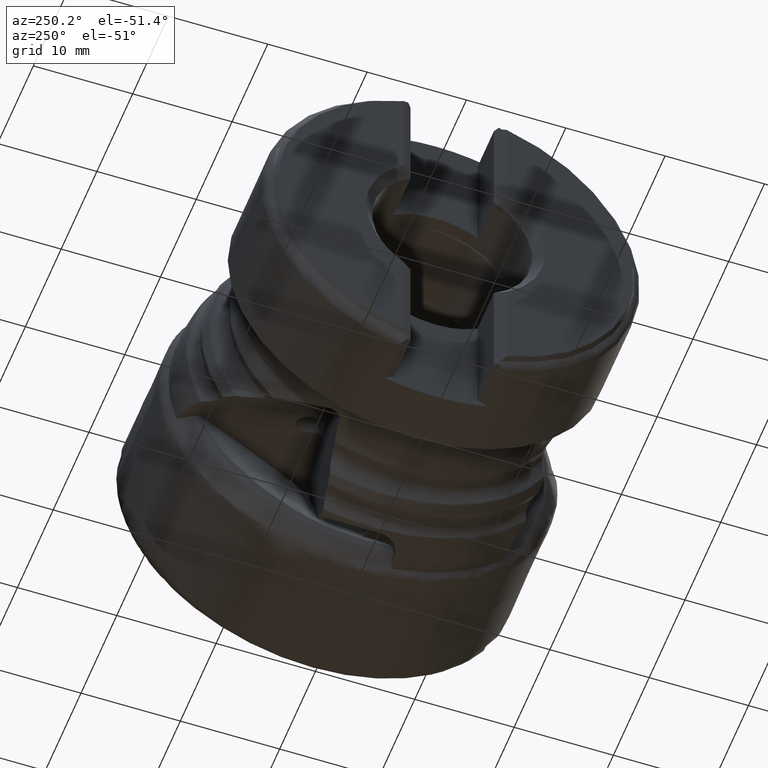
[diagram: clean part render]
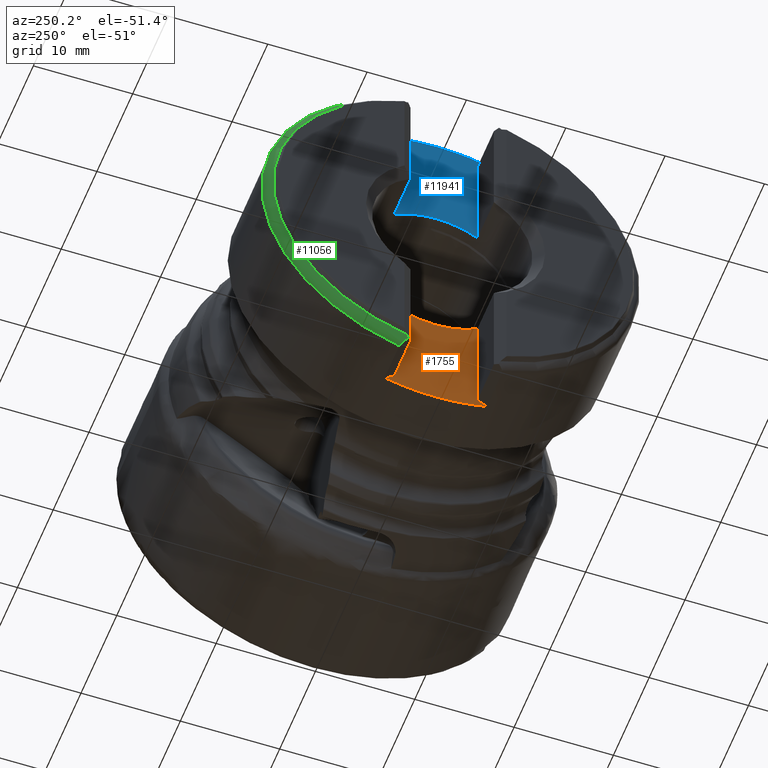
[diagram: same view with three faces highlighted in distinct colors, each labeled with its STEP entity id]
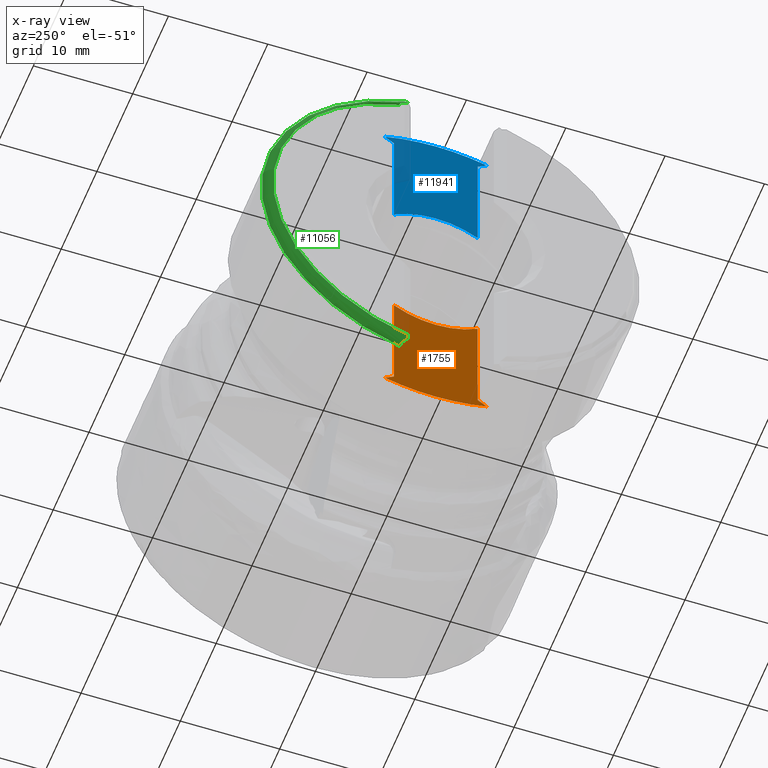
[diagram: x-ray of the same camera — body ghosted, the three highlighted faces saturated]
A machine part, auxiliary view with three faces highlighted in distinct colors.
The next image is the same camera in x-ray (body ghosted, the three faces saturated) — at least one of them is partly hidden behind the body in this view.
Their STEP definitions:

[orange] entity #1755 — the highlighted planar face has unit normal (1, 0, 0).
#59 = DIRECTION ( 'NONE',  ( -0.0000000000000000000, -0.0000000000000000000, 1.000000000000000000 ) ) ;
#216 = DIRECTION ( 'NONE',  ( -0.0000000000000000000, 0.8459221033847832400, -0.5333064738075696800 ) ) ;
#224 = CIRCLE ( 'NONE', #10330, 18.99999999999999600 ) ;
#277 = VECTOR ( 'NONE', #59, 1000.000000000000000 ) ;
#350 = DIRECTION ( 'NONE',  ( -0.0000000000000000000, 0.8459221033847801300, 0.5333064738075745700 ) ) ;
#520 = CARTESIAN_POINT ( 'NONE',  ( -33.65000000000000600, 4.199999999999995700, -25.00000000000000000 ) ) ;
#530 = ORIENTED_EDGE ( 'NONE', *, *, #5624, .F. ) ;
#590 = AXIS2_PLACEMENT_3D ( 'NONE', #9274, #682, #7443 ) ;
#682 = DIRECTION ( 'NONE',  ( -1.000000000000000000, -0.0000000000000000000, -0.0000000000000000000 ) ) ;
#928 = ORIENTED_EDGE ( 'NONE', *, *, #7433, .T. ) ;
#991 = PLANE ( 'NONE',  #10624 ) ;
#998 = VERTEX_POINT ( 'NONE', #4947 ) ;
#1040 = LINE ( 'NONE', #6009, #1796 ) ;
#1056 = EDGE_CURVE ( 'NONE', #11588, #11684, #1040, .T. ) ;
#1101 = DIRECTION ( 'NONE',  ( -1.000000000000000000, -0.0000000000000000000, -0.0000000000000000000 ) ) ;
#1353 = EDGE_CURVE ( 'NONE', #998, #11371, #10550, .T. ) ;
#1568 = DIRECTION ( 'NONE',  ( -1.000000000000000000, -0.0000000000000000000, -0.0000000000000000000 ) ) ;
#1601 = VECTOR ( 'NONE', #350, 1000.000000000000100 ) ;
#1755 = ADVANCED_FACE ( 'NONE', ( #2455 ), #991, .F. ) ;
#1796 = VECTOR ( 'NONE', #216, 1000.000000000000100 ) ;
#1885 = CARTESIAN_POINT ( 'NONE',  ( -33.65000000000000600, -4.200000000000003700, -6.896783670668520800 ) ) ;
#1955 = DIRECTION ( 'NONE',  ( 0.0000000000000000000, 0.0000000000000000000, -1.000000000000000000 ) ) ;
#1992 = CARTESIAN_POINT ( 'NONE',  ( -33.65000000000000600, 4.199999999999995700, -25.00000000000000000 ) ) ;
#2146 = VERTEX_POINT ( 'NONE', #4159 ) ;
#2455 = FACE_OUTER_BOUND ( 'NONE', #2753, .T. ) ;
#2753 = EDGE_LOOP ( 'NONE', ( #7900, #4995, #928, #7668, #5719, #530, #3385, #5828 ) ) ;
#3385 = ORIENTED_EDGE ( 'NONE', *, *, #7534, .F. ) ;
#3611 = EDGE_CURVE ( 'NONE', #8539, #11371, #4120, .T. ) ;
#3658 = DIRECTION ( 'NONE',  ( -1.000000000000000000, -0.0000000000000000000, -0.0000000000000000000 ) ) ;
#3924 = CARTESIAN_POINT ( 'NONE',  ( -33.65000000000000600, -4.200000000000003700, -25.00000000000000000 ) ) ;
#4120 = CIRCLE ( 'NONE', #590, 8.074999999999995700 ) ;
#4159 = CARTESIAN_POINT ( 'NONE',  ( -33.65000000000000600, -5.145316538372394900, -18.29004422411141600 ) ) ;
#4301 = CARTESIAN_POINT ( 'NONE',  ( -33.65000000000000600, -1.485056457381522600, -15.98245539388556900 ) ) ;
#4837 = AXIS2_PLACEMENT_3D ( 'NONE', #11152, #1568, #5373 ) ;
#4947 = CARTESIAN_POINT ( 'NONE',  ( -33.65000000000000600, -4.200000000000003700, -17.69407512991924500 ) ) ;
#4951 = CARTESIAN_POINT ( 'NONE',  ( -33.65000000000000600, 0.0000000000000000000, 0.0000000000000000000 ) ) ;
#4995 = ORIENTED_EDGE ( 'NONE', *, *, #8588, .T. ) ;
#5373 = DIRECTION ( 'NONE',  ( 0.0000000000000000000, -3.552713678800500900E-015, -1.000000000000000000 ) ) ;
#5624 = EDGE_CURVE ( 'NONE', #6294, #8539, #7972, .T. ) ;
#5719 = ORIENTED_EDGE ( 'NONE', *, *, #3611, .F. ) ;
#5828 = ORIENTED_EDGE ( 'NONE', *, *, #1056, .T. ) ;
#5839 = DIRECTION ( 'NONE',  ( 0.0000000000000000000, 0.0000000000000000000, -1.000000000000000000 ) ) ;
#6009 = CARTESIAN_POINT ( 'NONE',  ( -33.65000000000000600, 7.495963779338912200, -19.77199556009053400 ) ) ;
#6164 = CARTESIAN_POINT ( 'NONE',  ( -33.65000000000000600, 0.0000000000000000000, -18.99999999999999600 ) ) ;
#6294 = VERTEX_POINT ( 'NONE', #6749 ) ;
#6749 = CARTESIAN_POINT ( 'NONE',  ( -33.65000000000000600, 4.199999999999995700, -6.896783670668521700 ) ) ;
#6765 = CIRCLE ( 'NONE', #4837, 18.99999999999999600 ) ;
#7063 = VERTEX_POINT ( 'NONE', #6164 ) ;
#7357 = LINE ( 'NONE', #520, #10957 ) ;
#7433 = EDGE_CURVE ( 'NONE', #2146, #998, #12178, .T. ) ;
#7443 = DIRECTION ( 'NONE',  ( 0.0000000000000000000, 0.0000000000000000000, -1.000000000000000000 ) ) ;
#7464 = EDGE_CURVE ( 'NONE', #11684, #7063, #6765, .T. ) ;
#7534 = EDGE_CURVE ( 'NONE', #11588, #6294, #7357, .T. ) ;
#7668 = ORIENTED_EDGE ( 'NONE', *, *, #1353, .T. ) ;
#7900 = ORIENTED_EDGE ( 'NONE', *, *, #7464, .T. ) ;
#7972 = CIRCLE ( 'NONE', #11103, 8.074999999999995700 ) ;
#8080 = CARTESIAN_POINT ( 'NONE',  ( -33.65000000000000600, 5.145316538372396700, -18.29004422411141600 ) ) ;
#8234 = DIRECTION ( 'NONE',  ( -0.0000000000000000000, -0.0000000000000000000, 1.000000000000000000 ) ) ;
#8539 = VERTEX_POINT ( 'NONE', #10602 ) ;
#8588 = EDGE_CURVE ( 'NONE', #7063, #2146, #224, .T. ) ;
#8741 = DIRECTION ( 'NONE',  ( 1.000000000000000000, 0.0000000000000000000, 0.0000000000000000000 ) ) ;
#9274 = CARTESIAN_POINT ( 'NONE',  ( -33.65000000000000600, 0.0000000000000000000, 0.0000000000000000000 ) ) ;
#9903 = CARTESIAN_POINT ( 'NONE',  ( -33.65000000000000600, 4.199999999999995700, -17.69407512991924500 ) ) ;
#10330 = AXIS2_PLACEMENT_3D ( 'NONE', #4951, #1101, #5839 ) ;
#10425 = DIRECTION ( 'NONE',  ( 0.0000000000000000000, 8.881784197001252300E-016, -1.000000000000000000 ) ) ;
#10550 = LINE ( 'NONE', #3924, #277 ) ;
#10602 = CARTESIAN_POINT ( 'NONE',  ( -33.65000000000000600, 0.0000000000000000000, -8.074999999999995700 ) ) ;
#10624 = AXIS2_PLACEMENT_3D ( 'NONE', #1992, #8741, #1955 ) ;
#10957 = VECTOR ( 'NONE', #8234, 1000.000000000000000 ) ;
#11103 = AXIS2_PLACEMENT_3D ( 'NONE', #12324, #3658, #10425 ) ;
#11152 = CARTESIAN_POINT ( 'NONE',  ( -33.65000000000000600, 0.0000000000000000000, 0.0000000000000000000 ) ) ;
#11371 = VERTEX_POINT ( 'NONE', #1885 ) ;
#11588 = VERTEX_POINT ( 'NONE', #9903 ) ;
#11684 = VERTEX_POINT ( 'NONE', #8080 ) ;
#12178 = LINE ( 'NONE', #4301, #1601 ) ;
#12324 = CARTESIAN_POINT ( 'NONE',  ( -33.65000000000000600, 0.0000000000000000000, 0.0000000000000000000 ) ) ;

[blue] entity #11941 — the highlighted planar face has unit normal (1, 0, 0).
#142 = CARTESIAN_POINT ( 'NONE',  ( -33.65000000000000600, 4.199999999999995700, 17.69407512991924500 ) ) ;
#331 = EDGE_CURVE ( 'NONE', #9394, #4635, #6500, .T. ) ;
#523 = DIRECTION ( 'NONE',  ( 0.0000000000000000000, 5.329070518200751400E-015, -1.000000000000000000 ) ) ;
#539 = DIRECTION ( 'NONE',  ( 0.0000000000000000000, 0.0000000000000000000, -1.000000000000000000 ) ) ;
#567 = CARTESIAN_POINT ( 'NONE',  ( -33.65000000000000600, 0.0000000000000000000, 0.0000000000000000000 ) ) ;
#606 = AXIS2_PLACEMENT_3D ( 'NONE', #4006, #11912, #8059 ) ;
#803 = VERTEX_POINT ( 'NONE', #4638 ) ;
#1131 = LINE ( 'NONE', #10531, #11407 ) ;
#1252 = ORIENTED_EDGE ( 'NONE', *, *, #7712, .T. ) ;
#1261 = ORIENTED_EDGE ( 'NONE', *, *, #5512, .F. ) ;
#1951 = CARTESIAN_POINT ( 'NONE',  ( -33.65000000000000600, 5.145316538372396700, 18.29004422411141600 ) ) ;
#2610 = CARTESIAN_POINT ( 'NONE',  ( -33.65000000000000600, 0.0000000000000000000, 0.0000000000000000000 ) ) ;
#2663 = DIRECTION ( 'NONE',  ( -0.0000000000000000000, -0.0000000000000000000, 1.000000000000000000 ) ) ;
#3144 = EDGE_CURVE ( 'NONE', #6114, #9394, #9979, .T. ) ;
#3249 = VERTEX_POINT ( 'NONE', #4355 ) ;
#3428 = DIRECTION ( 'NONE',  ( 1.000000000000000000, 0.0000000000000000000, 0.0000000000000000000 ) ) ;
#3497 = DIRECTION ( 'NONE',  ( 0.0000000000000000000, -0.8459221033847832400, -0.5333064738075696800 ) ) ;
#3537 = ORIENTED_EDGE ( 'NONE', *, *, #331, .F. ) ;
#4006 = CARTESIAN_POINT ( 'NONE',  ( -33.65000000000000600, 0.0000000000000000000, 0.0000000000000000000 ) ) ;
#4257 = DIRECTION ( 'NONE',  ( -1.000000000000000000, -0.0000000000000000000, -0.0000000000000000000 ) ) ;
#4334 = CARTESIAN_POINT ( 'NONE',  ( -33.65000000000000600, -4.199999999999998400, 6.896783670668519900 ) ) ;
#4355 = CARTESIAN_POINT ( 'NONE',  ( -33.65000000000000600, -4.200000000000003700, 17.69407512991924500 ) ) ;
#4611 = DIRECTION ( 'NONE',  ( -0.0000000000000000000, -0.8459221033847805800, 0.5333064738075739000 ) ) ;
#4635 = VERTEX_POINT ( 'NONE', #142 ) ;
#4638 = CARTESIAN_POINT ( 'NONE',  ( -33.65000000000000600, 2.326828918379970600E-015, 18.99999999999999600 ) ) ;
#4847 = VERTEX_POINT ( 'NONE', #4334 ) ;
#5208 = CARTESIAN_POINT ( 'NONE',  ( -33.65000000000000600, 9.889022903114871900E-016, 8.074999999999995700 ) ) ;
#5512 = EDGE_CURVE ( 'NONE', #4847, #6114, #11888, .T. ) ;
#5565 = LINE ( 'NONE', #5586, #6022 ) ;
#5586 = CARTESIAN_POINT ( 'NONE',  ( -33.65000000000000600, -15.06082292426214800, 5.551205809837325600 ) ) ;
#5643 = CARTESIAN_POINT ( 'NONE',  ( -33.65000000000000600, 4.199999999999995700, 6.896783670668521700 ) ) ;
#5702 = FACE_OUTER_BOUND ( 'NONE', #6160, .T. ) ;
#5999 = CIRCLE ( 'NONE', #606, 18.99999999999999600 ) ;
#6022 = VECTOR ( 'NONE', #3497, 1000.000000000000100 ) ;
#6114 = VERTEX_POINT ( 'NONE', #5208 ) ;
#6160 = EDGE_LOOP ( 'NONE', ( #6506, #10297, #9735, #3537, #8971, #1261, #1252, #8940 ) ) ;
#6295 = DIRECTION ( 'NONE',  ( -0.0000000000000000000, -0.0000000000000000000, 1.000000000000000000 ) ) ;
#6298 = VERTEX_POINT ( 'NONE', #1951 ) ;
#6331 = CIRCLE ( 'NONE', #12136, 18.99999999999999600 ) ;
#6500 = LINE ( 'NONE', #9175, #12372 ) ;
#6506 = ORIENTED_EDGE ( 'NONE', *, *, #10583, .T. ) ;
#6529 = CARTESIAN_POINT ( 'NONE',  ( -33.65000000000000600, 0.0000000000000000000, 0.0000000000000000000 ) ) ;
#6530 = CARTESIAN_POINT ( 'NONE',  ( -33.65000000000000600, -4.200000000000003700, -25.00000000000000000 ) ) ;
#6605 = EDGE_CURVE ( 'NONE', #803, #6298, #5999, .T. ) ;
#7240 = AXIS2_PLACEMENT_3D ( 'NONE', #2610, #12203, #10292 ) ;
#7351 = PLANE ( 'NONE',  #7566 ) ;
#7566 = AXIS2_PLACEMENT_3D ( 'NONE', #10108, #3428, #539 ) ;
#7712 = EDGE_CURVE ( 'NONE', #4847, #3249, #11861, .T. ) ;
#8059 = DIRECTION ( 'NONE',  ( 0.0000000000000000000, 0.0000000000000000000, -1.000000000000000000 ) ) ;
#8291 = VERTEX_POINT ( 'NONE', #8964 ) ;
#8426 = EDGE_CURVE ( 'NONE', #3249, #8291, #1131, .T. ) ;
#8447 = DIRECTION ( 'NONE',  ( -1.000000000000000000, -0.0000000000000000000, -0.0000000000000000000 ) ) ;
#8604 = DIRECTION ( 'NONE',  ( 0.0000000000000000000, 0.0000000000000000000, -1.000000000000000000 ) ) ;
#8940 = ORIENTED_EDGE ( 'NONE', *, *, #8426, .T. ) ;
#8964 = CARTESIAN_POINT ( 'NONE',  ( -33.65000000000000600, -5.145316538372395800, 18.29004422411141600 ) ) ;
#8971 = ORIENTED_EDGE ( 'NONE', *, *, #3144, .F. ) ;
#9175 = CARTESIAN_POINT ( 'NONE',  ( -33.65000000000000600, 4.199999999999995700, -25.00000000000000000 ) ) ;
#9281 = VECTOR ( 'NONE', #2663, 1000.000000000000000 ) ;
#9394 = VERTEX_POINT ( 'NONE', #5643 ) ;
#9735 = ORIENTED_EDGE ( 'NONE', *, *, #10754, .T. ) ;
#9979 = CIRCLE ( 'NONE', #11782, 8.074999999999995700 ) ;
#10108 = CARTESIAN_POINT ( 'NONE',  ( -33.65000000000000600, 4.199999999999995700, -25.00000000000000000 ) ) ;
#10292 = DIRECTION ( 'NONE',  ( 0.0000000000000000000, 2.664535259100375700E-015, -1.000000000000000000 ) ) ;
#10297 = ORIENTED_EDGE ( 'NONE', *, *, #6605, .T. ) ;
#10531 = CARTESIAN_POINT ( 'NONE',  ( -33.65000000000000600, 21.07173024621964800, 1.761665643632136300 ) ) ;
#10583 = EDGE_CURVE ( 'NONE', #8291, #803, #6331, .T. ) ;
#10754 = EDGE_CURVE ( 'NONE', #6298, #4635, #5565, .T. ) ;
#11407 = VECTOR ( 'NONE', #4611, 1000.000000000000000 ) ;
#11782 = AXIS2_PLACEMENT_3D ( 'NONE', #6529, #8447, #8604 ) ;
#11861 = LINE ( 'NONE', #6530, #9281 ) ;
#11888 = CIRCLE ( 'NONE', #7240, 8.074999999999995700 ) ;
#11912 = DIRECTION ( 'NONE',  ( -1.000000000000000000, -0.0000000000000000000, -0.0000000000000000000 ) ) ;
#11941 = ADVANCED_FACE ( 'NONE', ( #5702 ), #7351, .F. ) ;
#12136 = AXIS2_PLACEMENT_3D ( 'NONE', #567, #4257, #523 ) ;
#12203 = DIRECTION ( 'NONE',  ( -1.000000000000000000, -0.0000000000000000000, -0.0000000000000000000 ) ) ;
#12372 = VECTOR ( 'NONE', #6295, 1000.000000000000000 ) ;

[green] entity #11056 — the highlighted toroidal blend (fillet) surface has major radius 18 mm and minor (blend) radius 1 mm.
#130 = DIRECTION ( 'NONE',  ( 1.000000000000000000, -0.0000000000000000000, -0.0000000000000000000 ) ) ;
#198 = ORIENTED_EDGE ( 'NONE', *, *, #9540, .T. ) ;
#384 = CARTESIAN_POINT ( 'NONE',  ( -38.66678379136878600, 4.616783791368776600, -17.82357268792076600 ) ) ;
#726 = TOROIDAL_SURFACE ( 'NONE', #11002, 17.99999999999999600, 0.9999999999999991100 ) ;
#915 = CARTESIAN_POINT ( 'NONE',  ( -38.35942788190040200, 4.913861745239688400, 18.14412494965628800 ) ) ;
#1150 = EDGE_CURVE ( 'NONE', #4514, #5567, #6730, .T. ) ;
#1421 = VERTEX_POINT ( 'NONE', #4790 ) ;
#1462 = FACE_OUTER_BOUND ( 'NONE', #8924, .T. ) ;
#1621 = CARTESIAN_POINT ( 'NONE',  ( -38.72876197310684200, 4.678761973106828600, -17.59349912322757300 ) ) ;
#1929 = CARTESIAN_POINT ( 'NONE',  ( -37.75000000000000000, 5.145316538372397600, 18.29004422411141600 ) ) ;
#1961 = CARTESIAN_POINT ( 'NONE',  ( -37.94725609470364700, 5.145316538372399300, -18.29004422411141200 ) ) ;
#2008 = CARTESIAN_POINT ( 'NONE',  ( -38.61708559003722700, 4.567085590037220500, 17.92550201996621000 ) ) ;
#2395 = DIRECTION ( 'NONE',  ( 1.000000000000000000, -0.0000000000000000000, -0.0000000000000000000 ) ) ;
#2399 = AXIS2_PLACEMENT_3D ( 'NONE', #11092, #2395, #5303 ) ;
#3061 = B_SPLINE_CURVE_WITH_KNOTS ( 'NONE', 3,
 ( #4866, #6265, #384, #5189 ),
 .UNSPECIFIED., .F., .F.,
 ( 4, 4 ),
 ( 0.001376236126235840900, 0.001743834450343608400 ),
 .UNSPECIFIED. ) ;
#3062 = DIRECTION ( 'NONE',  ( 0.0000000000000000000, 0.0000000000000000000, -1.000000000000000000 ) ) ;
#3979 = EDGE_CURVE ( 'NONE', #4514, #1421, #9705, .T. ) ;
#4005 = ORIENTED_EDGE ( 'NONE', *, *, #8951, .T. ) ;
#4108 = CARTESIAN_POINT ( 'NONE',  ( -37.75000000000000000, 0.0000000000000000000, 0.0000000000000000000 ) ) ;
#4323 = VERTEX_POINT ( 'NONE', #9291 ) ;
#4514 = VERTEX_POINT ( 'NONE', #6911 ) ;
#4790 = CARTESIAN_POINT ( 'NONE',  ( -37.75000000000000000, 5.145316538372397600, 18.29004422411141600 ) ) ;
#4866 = CARTESIAN_POINT ( 'NONE',  ( -38.72876197310684200, 4.678761973106828600, -17.59349912322757300 ) ) ;
#4889 = ORIENTED_EDGE ( 'NONE', *, *, #9198, .F. ) ;
#5137 = VERTEX_POINT ( 'NONE', #7704 ) ;
#5189 = CARTESIAN_POINT ( 'NONE',  ( -38.61708559003722700, 4.567085590037219600, -17.92550201996621300 ) ) ;
#5303 = DIRECTION ( 'NONE',  ( 0.0000000000000000000, 0.0000000000000000000, -1.000000000000000000 ) ) ;
#5335 = CIRCLE ( 'NONE', #10903, 18.99999999999999600 ) ;
#5567 = VERTEX_POINT ( 'NONE', #11276 ) ;
#5897 = CARTESIAN_POINT ( 'NONE',  ( -38.54160244462829600, 4.720246212523099900, -18.02206120807263900 ) ) ;
#6215 = ORIENTED_EDGE ( 'NONE', *, *, #6374, .F. ) ;
#6232 = VERTEX_POINT ( 'NONE', #1621 ) ;
#6265 = CARTESIAN_POINT ( 'NONE',  ( -38.70577448888337100, 4.655774488883365000, -17.71317960075724700 ) ) ;
#6374 = EDGE_CURVE ( 'NONE', #6232, #5137, #3061, .T. ) ;
#6690 = ORIENTED_EDGE ( 'NONE', *, *, #1150, .F. ) ;
#6713 = CARTESIAN_POINT ( 'NONE',  ( -38.61708559003722700, 4.567085590037219600, -17.92550201996621300 ) ) ;
#6730 = B_SPLINE_CURVE_WITH_KNOTS ( 'NONE', 3,
 ( #7184, #8172, #10027, #12024 ),
 .UNSPECIFIED., .F., .F.,
 ( 4, 4 ),
 ( 0.0007403812674487771300, 0.001107652988460256300 ),
 .UNSPECIFIED. ) ;
#6762 = CARTESIAN_POINT ( 'NONE',  ( -38.43260159275221400, 4.861010131781611700, -18.11080496960659800 ) ) ;
#6850 = CARTESIAN_POINT ( 'NONE',  ( -37.75000000000000000, 0.0000000000000000000, 0.0000000000000000000 ) ) ;
#6876 = CIRCLE ( 'NONE', #2399, 18.20499999999999500 ) ;
#6883 = CARTESIAN_POINT ( 'NONE',  ( -38.42430682792235800, 4.850663868565163700, 18.10428223053763800 ) ) ;
#6911 = CARTESIAN_POINT ( 'NONE',  ( -38.61708559003722700, 4.567085590037220500, 17.92550201996621000 ) ) ;
#7184 = CARTESIAN_POINT ( 'NONE',  ( -38.61708559003722700, 4.567085590037220500, 17.92550201996621000 ) ) ;
#7704 = CARTESIAN_POINT ( 'NONE',  ( -38.61708559003722700, 4.567085590037219600, -17.92550201996621300 ) ) ;
#7725 = CARTESIAN_POINT ( 'NONE',  ( -37.94811907253211600, 5.145316538372396700, 18.29004422411141200 ) ) ;
#7975 = ORIENTED_EDGE ( 'NONE', *, *, #3979, .T. ) ;
#8172 = CARTESIAN_POINT ( 'NONE',  ( -38.66627935855626700, 4.616279358556259800, 17.82460726257878700 ) ) ;
#8756 = CARTESIAN_POINT ( 'NONE',  ( -38.13669875673240000, 5.075730333034930400, 18.24617402182484600 ) ) ;
#8924 = EDGE_LOOP ( 'NONE', ( #4889, #198, #6215, #4005, #6690, #7975 ) ) ;
#8951 = EDGE_CURVE ( 'NONE', #6232, #5567, #6876, .T. ) ;
#9198 = EDGE_CURVE ( 'NONE', #4323, #1421, #5335, .T. ) ;
#9291 = CARTESIAN_POINT ( 'NONE',  ( -37.75000000000000000, 5.145316538372397600, -18.29004422411141600 ) ) ;
#9540 = EDGE_CURVE ( 'NONE', #4323, #5137, #11429, .T. ) ;
#9566 = CARTESIAN_POINT ( 'NONE',  ( -38.57929678602079100, 4.643761736941207200, 17.97384203303230200 ) ) ;
#9705 = B_SPLINE_CURVE_WITH_KNOTS ( 'NONE', 3,
 ( #2008, #9566, #11639, #6883, #915, #8756, #7725, #1929 ),
 .UNSPECIFIED., .F., .F.,
 ( 4, 2, 2, 4 ),
 ( 0.0000000000000000000, 0.0002895214505956590300, 0.0005790429011913180700, 0.001158085802382637600 ),
 .UNSPECIFIED. ) ;
#9788 = DIRECTION ( 'NONE',  ( 0.0000000000000000000, 0.0000000000000000000, -1.000000000000000000 ) ) ;
#9827 = DIRECTION ( 'NONE',  ( 1.000000000000000000, -0.0000000000000000000, -0.0000000000000000000 ) ) ;
#10027 = CARTESIAN_POINT ( 'NONE',  ( -38.70598959973259000, 4.655989599732582600, 17.71205966223310600 ) ) ;
#10903 = AXIS2_PLACEMENT_3D ( 'NONE', #4108, #9827, #9788 ) ;
#11002 = AXIS2_PLACEMENT_3D ( 'NONE', #6850, #130, #3062 ) ;
#11056 = ADVANCED_FACE ( 'NONE', ( #1462 ), #726, .T. ) ;
#11092 = CARTESIAN_POINT ( 'NONE',  ( -38.72876197310684200, 0.0000000000000000000, 0.0000000000000000000 ) ) ;
#11276 = CARTESIAN_POINT ( 'NONE',  ( -38.72876197310684200, 4.678761973106828600, 17.59349912322757300 ) ) ;
#11429 = B_SPLINE_CURVE_WITH_KNOTS ( 'NONE', 3,
 ( #11546, #1961, #12521, #6762, #5897, #6713 ),
 .UNSPECIFIED., .F., .F.,
 ( 4, 2, 4 ),
 ( 0.0000000000000000000, 0.0005819526141183648300, 0.001163905228236729700 ),
 .UNSPECIFIED. ) ;
#11546 = CARTESIAN_POINT ( 'NONE',  ( -37.75000000000000000, 5.145316538372397600, -18.29004422411141600 ) ) ;
#11639 = CARTESIAN_POINT ( 'NONE',  ( -38.53367299600963500, 4.716084715386165800, 18.01943761737204500 ) ) ;
#12024 = CARTESIAN_POINT ( 'NONE',  ( -38.72876197310684200, 4.678761973106828600, 17.59349912322757300 ) ) ;
#12521 = CARTESIAN_POINT ( 'NONE',  ( -38.13546445337519200, 5.076297369145684100, -18.24653150631133900 ) ) ;